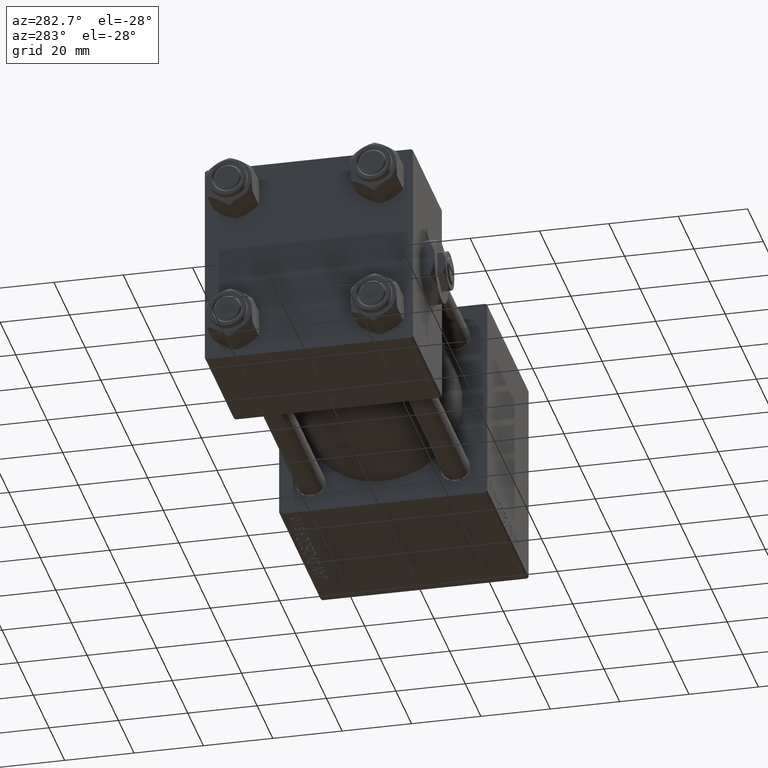
[diagram: clean part render]
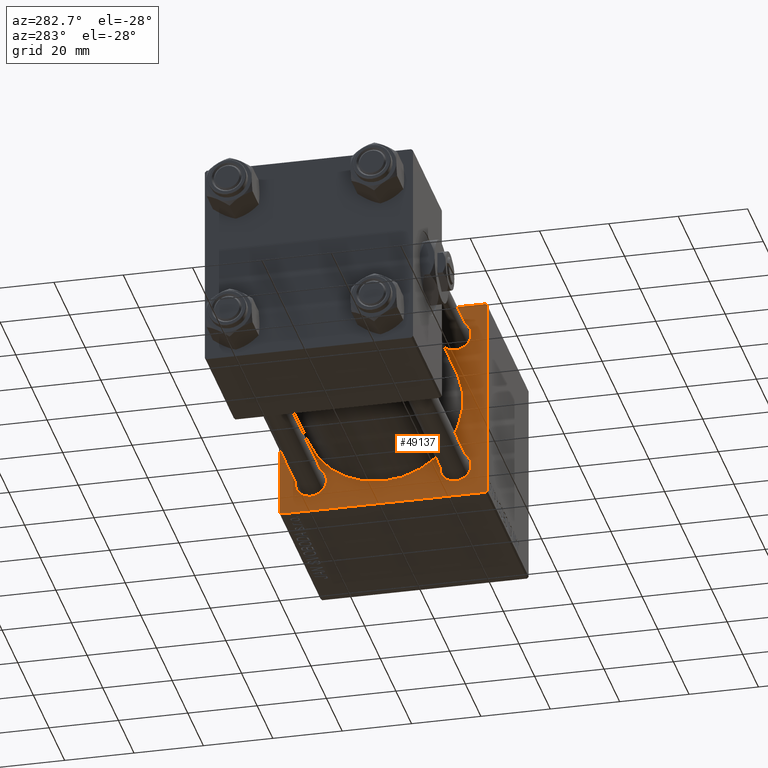
[diagram: same view with one face highlighted and labeled with its STEP entity id]
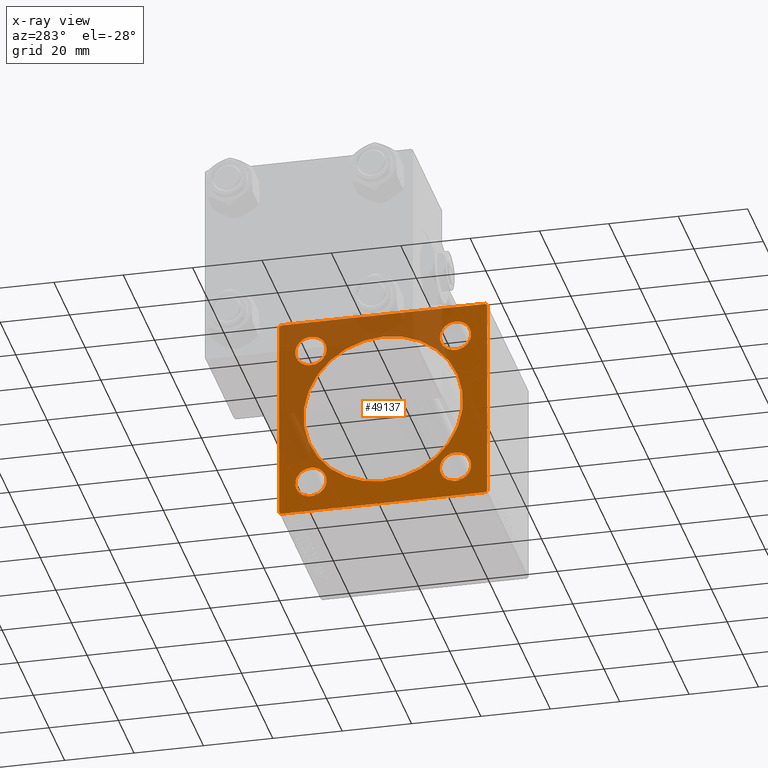
[diagram: x-ray of the same camera — body ghosted, the highlighted face saturated]
A machine part, auxiliary view. The second image highlights one B-rep face of the part: STEP entity #49137.
The next image is the same camera in x-ray: the body ghosted, the highlighted face saturated — about 41% of this face is hidden behind the body in this view.
In plain terms, the highlighted planar face has unit normal (-1, 0, 0).
Its self-contained STEP definition (entity closure, byte-faithful):
#26 = CARTESIAN_POINT ( 'NONE',  ( 95.00000000000000000, 30.00000000000000000, 29.50000000000000000 ) ) ;
#295 = VECTOR ( 'NONE', #9365, 1000.000000000000000 ) ;
#724 = CARTESIAN_POINT ( 'NONE',  ( 95.00000000000000000, 20.84999999999999787, 20.85000000000000142 ) ) ;
#1276 = CARTESIAN_POINT ( 'NONE',  ( 95.00000000000000000, 30.00000000000000000, -29.99999999999999289 ) ) ;
#1607 = CARTESIAN_POINT ( 'NONE',  ( 95.00000000000000000, -29.74999999999999645, 29.74999999999999645 ) ) ;
#1621 = CIRCLE ( 'NONE', #31798, 4.500000000000007105 ) ;
#1978 = LINE ( 'NONE', #17744, #4251 ) ;
#2745 = CARTESIAN_POINT ( 'NONE',  ( 95.00000000000000000, 20.84999999999999787, 25.35000000000000853 ) ) ;
#2994 = DIRECTION ( 'NONE',  ( 1.000000000000000000, -0.000000000000000000, 0.000000000000000000 ) ) ;
#3055 = ORIENTED_EDGE ( 'NONE', *, *, #43150, .T. ) ;
#3302 = VERTEX_POINT ( 'NONE', #3897 ) ;
#3363 = EDGE_CURVE ( 'NONE', #22133, #25134, #48785, .T. ) ;
#3572 = FACE_OUTER_BOUND ( 'NONE', #18319, .T. ) ;
#3684 = CIRCLE ( 'NONE', #26308, 4.500000000000007105 ) ;
#3897 = CARTESIAN_POINT ( 'NONE',  ( 95.00000000000000000, -29.50000000000000000, 29.99999999999999289 ) ) ;
#4087 = PLANE ( 'NONE',  #23080 ) ;
#4141 = DIRECTION ( 'NONE',  ( 1.000000000000000000, -0.000000000000000000, 0.000000000000000000 ) ) ;
#4164 = CARTESIAN_POINT ( 'NONE',  ( 95.00000000000000000, -20.84999999999999076, 25.35000000000001208 ) ) ;
#4251 = VECTOR ( 'NONE', #18009, 1000.000000000000114 ) ;
#4896 = CARTESIAN_POINT ( 'NONE',  ( 95.00000000000000000, 20.84999999999999787, 16.34999999999999432 ) ) ;
#5014 = EDGE_LOOP ( 'NONE', ( #3055, #5498 ) ) ;
#5127 = EDGE_CURVE ( 'NONE', #51328, #41139, #32951, .T. ) ;
#5498 = ORIENTED_EDGE ( 'NONE', *, *, #17588, .T. ) ;
#6229 = AXIS2_PLACEMENT_3D ( 'NONE', #46867, #2994, #51308 ) ;
#7154 = CARTESIAN_POINT ( 'NONE',  ( 95.00000000000000000, -2.602085213965210642E-15, 0.000000000000000000 ) ) ;
#7799 = CIRCLE ( 'NONE', #14537, 23.00000000000000000 ) ;
#8417 = LINE ( 'NONE', #36777, #19627 ) ;
#8436 = ORIENTED_EDGE ( 'NONE', *, *, #3363, .T. ) ;
#8652 = EDGE_CURVE ( 'NONE', #14451, #22133, #38001, .T. ) ;
#9365 = DIRECTION ( 'NONE',  ( 0.000000000000000000, 0.000000000000000000, -1.000000000000000000 ) ) ;
#10168 = CARTESIAN_POINT ( 'NONE',  ( 95.00000000000000000, 20.84999999999999787, -25.35000000000000853 ) ) ;
#10735 = AXIS2_PLACEMENT_3D ( 'NONE', #7154, #38668, #34467 ) ;
#10917 = VERTEX_POINT ( 'NONE', #4896 ) ;
#11466 = CARTESIAN_POINT ( 'NONE',  ( 95.00000000000000000, 0.000000000000000000, 0.000000000000000000 ) ) ;
#11937 = DIRECTION ( 'NONE',  ( 0.000000000000000000, 0.000000000000000000, 1.000000000000000000 ) ) ;
#12036 = ORIENTED_EDGE ( 'NONE', *, *, #44498, .T. ) ;
#12048 = VERTEX_POINT ( 'NONE', #12233 ) ;
#12233 = CARTESIAN_POINT ( 'NONE',  ( 95.00000000000000000, -20.84999999999999076, 16.34999999999999787 ) ) ;
#12815 = DIRECTION ( 'NONE',  ( -0.000000000000000000, -0.7071067811865474617, -0.7071067811865474617 ) ) ;
#13087 = CARTESIAN_POINT ( 'NONE',  ( 95.00000000000000000, -20.84999999999999076, -20.85000000000000497 ) ) ;
#13231 = CIRCLE ( 'NONE', #39211, 4.500000000000007105 ) ;
#13240 = CARTESIAN_POINT ( 'NONE',  ( 95.00000000000000000, -20.84999999999999076, -25.35000000000001208 ) ) ;
#13524 = DIRECTION ( 'NONE',  ( 1.000000000000000000, 0.000000000000000000, 0.000000000000000000 ) ) ;
#13624 = LINE ( 'NONE', #1276, #22765 ) ;
#13866 = DIRECTION ( 'NONE',  ( 1.000000000000000000, -0.000000000000000000, 0.000000000000000000 ) ) ;
#13904 = ORIENTED_EDGE ( 'NONE', *, *, #16352, .T. ) ;
#14050 = AXIS2_PLACEMENT_3D ( 'NONE', #13087, #13866, #17018 ) ;
#14074 = VERTEX_POINT ( 'NONE', #29583 ) ;
#14080 = CARTESIAN_POINT ( 'NONE',  ( 95.00000000000000000, 20.84999999999999787, -16.34999999999999432 ) ) ;
#14154 = ORIENTED_EDGE ( 'NONE', *, *, #43027, .T. ) ;
#14451 = VERTEX_POINT ( 'NONE', #26 ) ;
#14537 = AXIS2_PLACEMENT_3D ( 'NONE', #49493, #13524, #36640 ) ;
#15146 = FACE_BOUND ( 'NONE', #5014, .T. ) ;
#15314 = EDGE_CURVE ( 'NONE', #37586, #14074, #27477, .T. ) ;
#15651 = AXIS2_PLACEMENT_3D ( 'NONE', #21689, #45082, #32724 ) ;
#15670 = DIRECTION ( 'NONE',  ( -1.000000000000000000, 0.000000000000000000, -0.000000000000000000 ) ) ;
#16352 = EDGE_CURVE ( 'NONE', #25134, #45264, #13624, .T. ) ;
#16512 = CARTESIAN_POINT ( 'NONE',  ( 95.00000000000000000, -29.50000000000000000, -30.00000000000000000 ) ) ;
#16647 = CARTESIAN_POINT ( 'NONE',  ( 95.00000000000000000, -20.84999999999999076, 20.85000000000000497 ) ) ;
#17018 = DIRECTION ( 'NONE',  ( 0.000000000000000000, 0.000000000000000000, 1.000000000000000000 ) ) ;
#17308 = VECTOR ( 'NONE', #35393, 1000.000000000000000 ) ;
#17495 = EDGE_CURVE ( 'NONE', #24080, #3302, #47751, .T. ) ;
#17588 = EDGE_CURVE ( 'NONE', #24639, #22562, #26521, .T. ) ;
#17744 = CARTESIAN_POINT ( 'NONE',  ( 95.00000000000000000, 29.74999999999999645, 29.74999999999999645 ) ) ;
#18009 = DIRECTION ( 'NONE',  ( 0.000000000000000000, 0.7071067811865474617, -0.7071067811865474617 ) ) ;
#18319 = EDGE_LOOP ( 'NONE', ( #13904, #14154, #28414, #39813, #42383, #38088, #32783, #8436 ) ) ;
#19286 = EDGE_CURVE ( 'NONE', #12048, #24522, #22404, .T. ) ;
#19627 = VECTOR ( 'NONE', #40715, 1000.000000000000114 ) ;
#19750 = CARTESIAN_POINT ( 'NONE',  ( 95.00000000000000000, 30.00000000000000000, -29.49999999999997868 ) ) ;
#19908 = DIRECTION ( 'NONE',  ( 0.000000000000000000, 0.000000000000000000, 1.000000000000000000 ) ) ;
#20389 = EDGE_CURVE ( 'NONE', #10917, #39715, #13231, .T. ) ;
#20677 = DIRECTION ( 'NONE',  ( 0.000000000000000000, 0.000000000000000000, 1.000000000000000000 ) ) ;
#20767 = ORIENTED_EDGE ( 'NONE', *, *, #19286, .T. ) ;
#20866 = ORIENTED_EDGE ( 'NONE', *, *, #27500, .T. ) ;
#21689 = CARTESIAN_POINT ( 'NONE',  ( 95.00000000000000000, 20.84999999999999787, -20.85000000000000142 ) ) ;
#22133 = VERTEX_POINT ( 'NONE', #19750 ) ;
#22404 = CIRCLE ( 'NONE', #51753, 4.500000000000007105 ) ;
#22562 = VERTEX_POINT ( 'NONE', #14080 ) ;
#22765 = VECTOR ( 'NONE', #33309, 1000.000000000000000 ) ;
#22992 = VERTEX_POINT ( 'NONE', #13240 ) ;
#23080 = AXIS2_PLACEMENT_3D ( 'NONE', #11466, #15670, #31665 ) ;
#23521 = EDGE_CURVE ( 'NONE', #29043, #22992, #24079, .T. ) ;
#24079 = CIRCLE ( 'NONE', #14050, 4.500000000000007105 ) ;
#24080 = VERTEX_POINT ( 'NONE', #38644 ) ;
#24114 = CARTESIAN_POINT ( 'NONE',  ( 95.00000000000000000, -30.00000000000000000, 29.99999999999999289 ) ) ;
#24522 = VERTEX_POINT ( 'NONE', #4164 ) ;
#24639 = VERTEX_POINT ( 'NONE', #10168 ) ;
#24773 = EDGE_LOOP ( 'NONE', ( #20866, #31667 ) ) ;
#25134 = VERTEX_POINT ( 'NONE', #43451 ) ;
#25189 = CARTESIAN_POINT ( 'NONE',  ( 95.00000000000000000, 20.84999999999999787, 20.85000000000000142 ) ) ;
#25388 = VECTOR ( 'NONE', #12815, 1000.000000000000114 ) ;
#26308 = AXIS2_PLACEMENT_3D ( 'NONE', #31461, #4141, #19908 ) ;
#26521 = CIRCLE ( 'NONE', #15651, 4.500000000000007105 ) ;
#26771 = AXIS2_PLACEMENT_3D ( 'NONE', #25189, #41217, #33341 ) ;
#27155 = DIRECTION ( 'NONE',  ( 0.000000000000000000, 0.000000000000000000, 1.000000000000000000 ) ) ;
#27477 = CIRCLE ( 'NONE', #10735, 23.00000000000000000 ) ;
#27500 = EDGE_CURVE ( 'NONE', #39715, #10917, #34319, .T. ) ;
#28008 = EDGE_CURVE ( 'NONE', #22992, #29043, #1621, .T. ) ;
#28414 = ORIENTED_EDGE ( 'NONE', *, *, #5127, .F. ) ;
#28857 = CIRCLE ( 'NONE', #6229, 4.500000000000007105 ) ;
#29043 = VERTEX_POINT ( 'NONE', #46834 ) ;
#29583 = CARTESIAN_POINT ( 'NONE',  ( 95.00000000000000000, 2.146024240737012665E-16, -23.00000000000000000 ) ) ;
#31033 = EDGE_LOOP ( 'NONE', ( #48357, #44682 ) ) ;
#31099 = CARTESIAN_POINT ( 'NONE',  ( 95.00000000000000000, -20.84999999999999076, -20.85000000000000497 ) ) ;
#31139 = FACE_BOUND ( 'NONE', #31033, .T. ) ;
#31461 = CARTESIAN_POINT ( 'NONE',  ( 95.00000000000000000, 20.84999999999999787, -20.85000000000000142 ) ) ;
#31523 = EDGE_CURVE ( 'NONE', #24080, #14451, #1978, .T. ) ;
#31665 = DIRECTION ( 'NONE',  ( -0.000000000000000000, 0.000000000000000000, 1.000000000000000000 ) ) ;
#31667 = ORIENTED_EDGE ( 'NONE', *, *, #20389, .T. ) ;
#31798 = AXIS2_PLACEMENT_3D ( 'NONE', #31099, #47137, #27155 ) ;
#31894 = ORIENTED_EDGE ( 'NONE', *, *, #41399, .T. ) ;
#32724 = DIRECTION ( 'NONE',  ( 0.000000000000000000, 0.000000000000000000, 1.000000000000000000 ) ) ;
#32783 = ORIENTED_EDGE ( 'NONE', *, *, #8652, .T. ) ;
#32951 = LINE ( 'NONE', #24114, #44753 ) ;
#33273 = CARTESIAN_POINT ( 'NONE',  ( 95.00000000000000000, 29.74999999999999645, -29.74999999999999645 ) ) ;
#33309 = DIRECTION ( 'NONE',  ( 0.000000000000000000, -1.000000000000000000, -1.156482317317871478E-16 ) ) ;
#33341 = DIRECTION ( 'NONE',  ( 0.000000000000000000, 0.000000000000000000, 1.000000000000000000 ) ) ;
#34319 = CIRCLE ( 'NONE', #26771, 4.500000000000007105 ) ;
#34430 = EDGE_CURVE ( 'NONE', #51328, #3302, #42032, .T. ) ;
#34467 = DIRECTION ( 'NONE',  ( 0.000000000000000000, 0.000000000000000000, -1.000000000000000000 ) ) ;
#35098 = FACE_BOUND ( 'NONE', #37177, .T. ) ;
#35342 = CARTESIAN_POINT ( 'NONE',  ( 95.00000000000000000, -2.602085213965210642E-15, 23.00000000000000000 ) ) ;
#35393 = DIRECTION ( 'NONE',  ( 0.000000000000000000, -1.000000000000000000, -1.156482317317871478E-16 ) ) ;
#35864 = FACE_BOUND ( 'NONE', #44443, .T. ) ;
#36640 = DIRECTION ( 'NONE',  ( 0.000000000000000000, 0.000000000000000000, -1.000000000000000000 ) ) ;
#36777 = CARTESIAN_POINT ( 'NONE',  ( 95.00000000000000000, -29.74999999999999645, -29.74999999999999645 ) ) ;
#37177 = EDGE_LOOP ( 'NONE', ( #12036, #20767 ) ) ;
#37235 = CARTESIAN_POINT ( 'NONE',  ( 95.00000000000000000, -30.00000000000000000, 29.49999999999999289 ) ) ;
#37417 = DIRECTION ( 'NONE',  ( 0.000000000000000000, 0.000000000000000000, -1.000000000000000000 ) ) ;
#37586 = VERTEX_POINT ( 'NONE', #35342 ) ;
#38001 = LINE ( 'NONE', #49304, #295 ) ;
#38088 = ORIENTED_EDGE ( 'NONE', *, *, #31523, .T. ) ;
#38644 = CARTESIAN_POINT ( 'NONE',  ( 95.00000000000000000, 29.50000000000000000, 30.00000000000000000 ) ) ;
#38668 = DIRECTION ( 'NONE',  ( 1.000000000000000000, 0.000000000000000000, 0.000000000000000000 ) ) ;
#39211 = AXIS2_PLACEMENT_3D ( 'NONE', #724, #40634, #20677 ) ;
#39715 = VERTEX_POINT ( 'NONE', #2745 ) ;
#39813 = ORIENTED_EDGE ( 'NONE', *, *, #34430, .T. ) ;
#40634 = DIRECTION ( 'NONE',  ( 1.000000000000000000, -0.000000000000000000, 0.000000000000000000 ) ) ;
#40715 = DIRECTION ( 'NONE',  ( 0.000000000000000000, -0.7071067811865474617, 0.7071067811865474617 ) ) ;
#41139 = VERTEX_POINT ( 'NONE', #49554 ) ;
#41217 = DIRECTION ( 'NONE',  ( 1.000000000000000000, -0.000000000000000000, 0.000000000000000000 ) ) ;
#41399 = EDGE_CURVE ( 'NONE', #14074, #37586, #7799, .T. ) ;
#42032 = LINE ( 'NONE', #1607, #42937 ) ;
#42383 = ORIENTED_EDGE ( 'NONE', *, *, #17495, .F. ) ;
#42560 = DIRECTION ( 'NONE',  ( -0.000000000000000000, 0.7071067811865474617, 0.7071067811865474617 ) ) ;
#42937 = VECTOR ( 'NONE', #42560, 1000.000000000000114 ) ;
#43027 = EDGE_CURVE ( 'NONE', #45264, #41139, #8417, .T. ) ;
#43150 = EDGE_CURVE ( 'NONE', #22562, #24639, #3684, .T. ) ;
#43451 = CARTESIAN_POINT ( 'NONE',  ( 95.00000000000000000, 29.50000000000000000, -29.99999999999999289 ) ) ;
#43538 = CARTESIAN_POINT ( 'NONE',  ( 95.00000000000000000, 30.00000000000000000, 30.00000000000000000 ) ) ;
#44443 = EDGE_LOOP ( 'NONE', ( #50910, #31894 ) ) ;
#44498 = EDGE_CURVE ( 'NONE', #24522, #12048, #28857, .T. ) ;
#44682 = ORIENTED_EDGE ( 'NONE', *, *, #28008, .T. ) ;
#44753 = VECTOR ( 'NONE', #37417, 1000.000000000000000 ) ;
#45082 = DIRECTION ( 'NONE',  ( 1.000000000000000000, -0.000000000000000000, 0.000000000000000000 ) ) ;
#45264 = VERTEX_POINT ( 'NONE', #16512 ) ;
#46834 = CARTESIAN_POINT ( 'NONE',  ( 95.00000000000000000, -20.84999999999999076, -16.34999999999999787 ) ) ;
#46867 = CARTESIAN_POINT ( 'NONE',  ( 95.00000000000000000, -20.84999999999999076, 20.85000000000000497 ) ) ;
#47137 = DIRECTION ( 'NONE',  ( 1.000000000000000000, -0.000000000000000000, 0.000000000000000000 ) ) ;
#47751 = LINE ( 'NONE', #43538, #17308 ) ;
#47912 = DIRECTION ( 'NONE',  ( 1.000000000000000000, -0.000000000000000000, 0.000000000000000000 ) ) ;
#48357 = ORIENTED_EDGE ( 'NONE', *, *, #23521, .T. ) ;
#48785 = LINE ( 'NONE', #33273, #25388 ) ;
#49137 = ADVANCED_FACE ( 'NONE', ( #35098, #51367, #15146, #31139, #35864, #3572 ), #4087, .T. ) ;
#49304 = CARTESIAN_POINT ( 'NONE',  ( 95.00000000000000000, 30.00000000000000000, 30.00000000000000000 ) ) ;
#49493 = CARTESIAN_POINT ( 'NONE',  ( 95.00000000000000000, -2.602085213965210642E-15, 0.000000000000000000 ) ) ;
#49554 = CARTESIAN_POINT ( 'NONE',  ( 95.00000000000000000, -30.00000000000000000, -29.49999999999998579 ) ) ;
#50910 = ORIENTED_EDGE ( 'NONE', *, *, #15314, .T. ) ;
#51308 = DIRECTION ( 'NONE',  ( 0.000000000000000000, 0.000000000000000000, 1.000000000000000000 ) ) ;
#51328 = VERTEX_POINT ( 'NONE', #37235 ) ;
#51367 = FACE_BOUND ( 'NONE', #24773, .T. ) ;
#51753 = AXIS2_PLACEMENT_3D ( 'NONE', #16647, #47912, #11937 ) ;